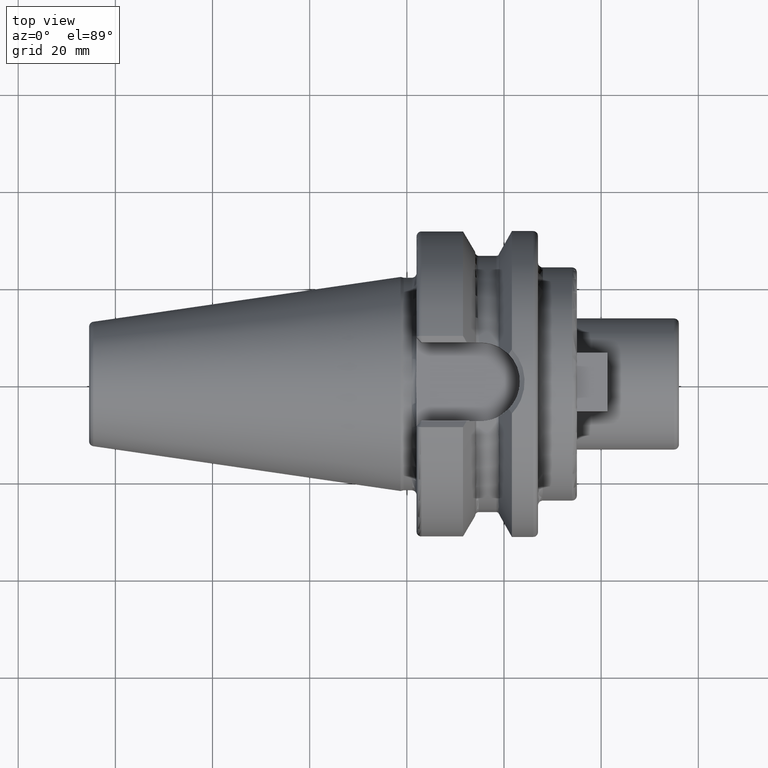
[diagram: clean part render]
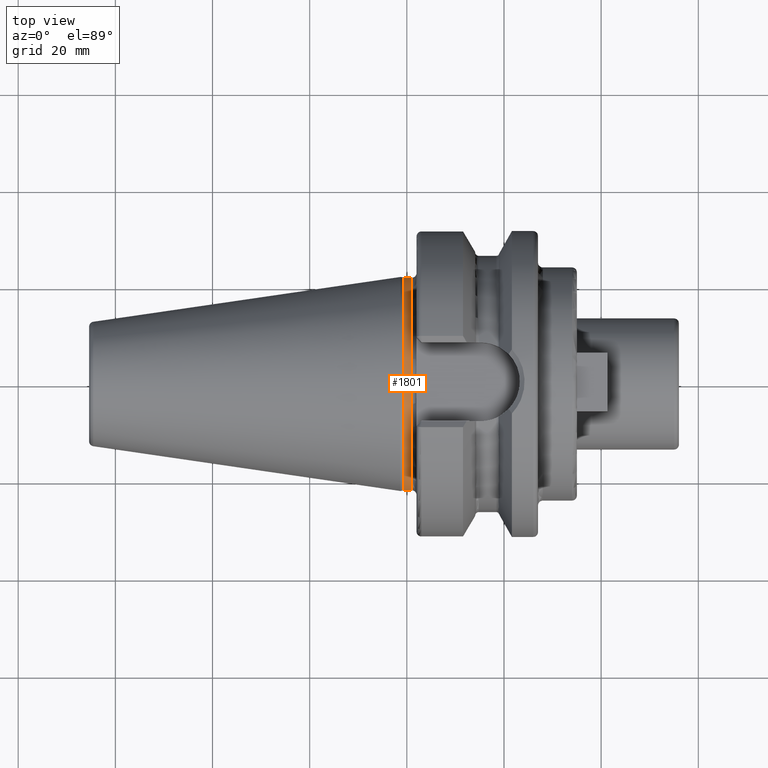
[diagram: same view with one face highlighted and labeled with its STEP entity id]
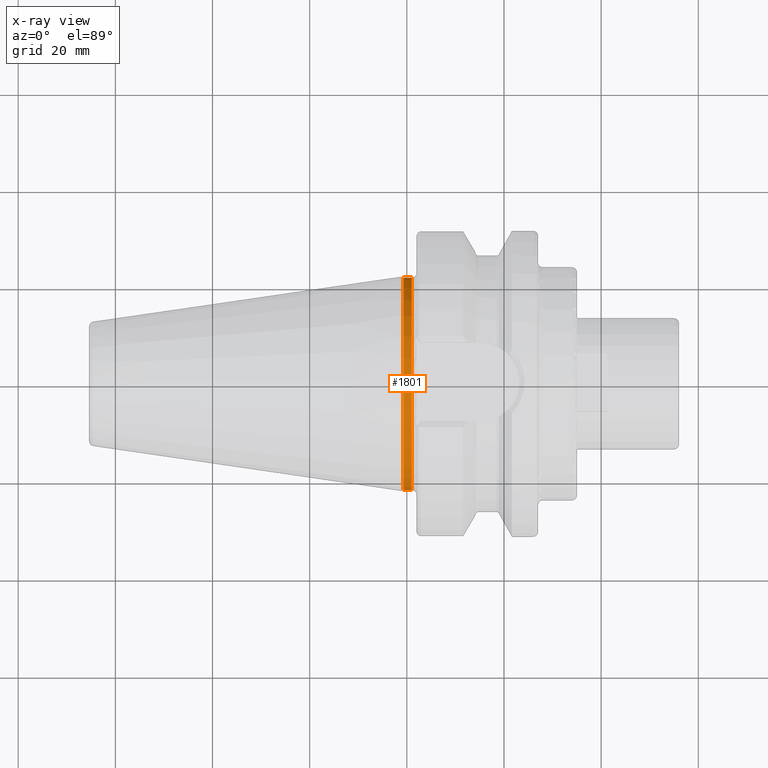
[diagram: x-ray of the same camera — body ghosted, the highlighted face saturated]
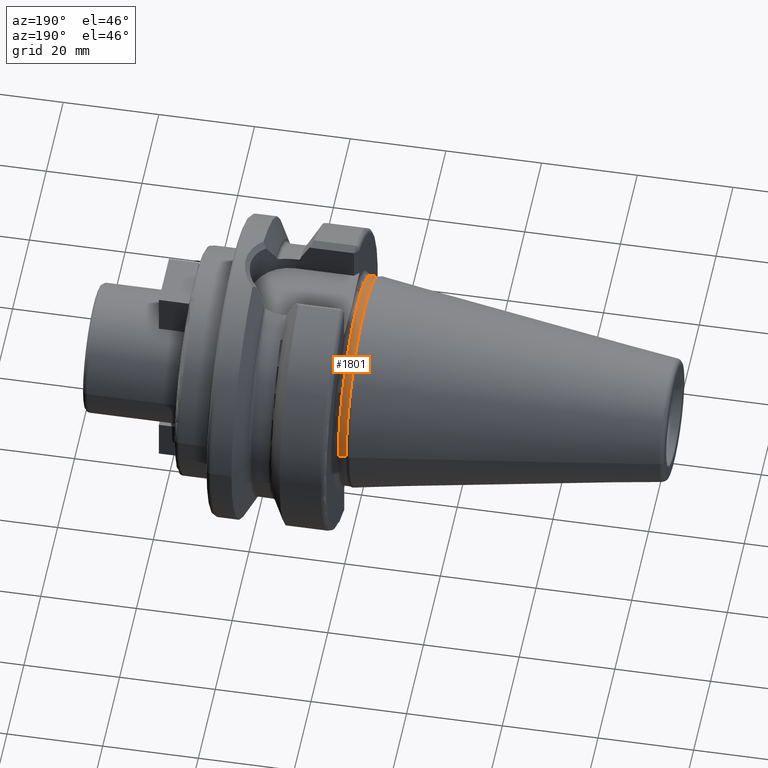
[diagram: same view with one face highlighted and labeled with its STEP entity id]
A machine part, top view. The second image highlights one B-rep face of the part: STEP entity #1801.
The next image is the same camera in x-ray: the body ghosted, the highlighted face saturated — about 0% of this face is hidden behind the body in this view.
A second angle (auxiliary view) of the same face is appended — the face is thin or edge-on in the first view.
In plain terms, the highlighted cylindrical surface (partial cylindrical patch) has radius 21.875 mm, axis along (1, 0, 0).
Its self-contained STEP definition (entity closure, byte-faithful):
#73=CARTESIAN_POINT('',(-6.5E-1,0.E0,0.E0));
#74=DIRECTION('',(1.E0,0.E0,0.E0));
#75=DIRECTION('',(0.E0,1.E0,0.E0));
#76=AXIS2_PLACEMENT_3D('',#73,#74,#75);
#78=CARTESIAN_POINT('',(1.E0,0.E0,0.E0));
#79=DIRECTION('',(1.E0,0.E0,0.E0));
#80=DIRECTION('',(0.E0,1.E0,0.E0));
#81=AXIS2_PLACEMENT_3D('',#78,#79,#80);
#83=DIRECTION('',(-1.E0,0.E0,0.E0));
#84=VECTOR('',#83,1.65E0);
#85=CARTESIAN_POINT('',(1.E0,2.1875E1,0.E0));
#86=LINE('',#85,#84);
#87=DIRECTION('',(-1.E0,0.E0,0.E0));
#88=VECTOR('',#87,1.65E0);
#89=CARTESIAN_POINT('',(1.E0,-2.1875E1,0.E0));
#90=LINE('',#89,#88);
#1449=CARTESIAN_POINT('',(1.E0,2.1875E1,0.E0));
#1451=VERTEX_POINT('',#1449);
#1452=CARTESIAN_POINT('',(-6.5E-1,2.1875E1,0.E0));
#1453=VERTEX_POINT('',#1452);
#1455=CARTESIAN_POINT('',(1.E0,-2.1875E1,0.E0));
#1457=VERTEX_POINT('',#1455);
#1458=CARTESIAN_POINT('',(-6.5E-1,-2.1875E1,0.E0));
#1459=VERTEX_POINT('',#1458);
#1787=CARTESIAN_POINT('',(-7.002E1,0.E0,0.E0));
#1788=DIRECTION('',(1.E0,0.E0,0.E0));
#1789=DIRECTION('',(0.E0,-1.E0,0.E0));
#1790=AXIS2_PLACEMENT_3D('',#1787,#1788,#1789);
#1791=CYLINDRICAL_SURFACE('',#1790,2.1875E1);
#1793=ORIENTED_EDGE('',*,*,#1792,.F.);
#1795=ORIENTED_EDGE('',*,*,#1794,.T.);
#1797=ORIENTED_EDGE('',*,*,#1796,.T.);
#1798=ORIENTED_EDGE('',*,*,#1780,.F.);
#1799=EDGE_LOOP('',(#1793,#1795,#1797,#1798));
#1800=FACE_OUTER_BOUND('',#1799,.F.);
#1801=ADVANCED_FACE('',(#1800),#1791,.T.);
#77=CIRCLE('',#76,2.1875E1);
#82=CIRCLE('',#81,2.1875E1);
#1780=EDGE_CURVE('',#1453,#1459,#77,.T.);
#1792=EDGE_CURVE('',#1451,#1453,#86,.T.);
#1794=EDGE_CURVE('',#1451,#1457,#82,.T.);
#1796=EDGE_CURVE('',#1457,#1459,#90,.T.);